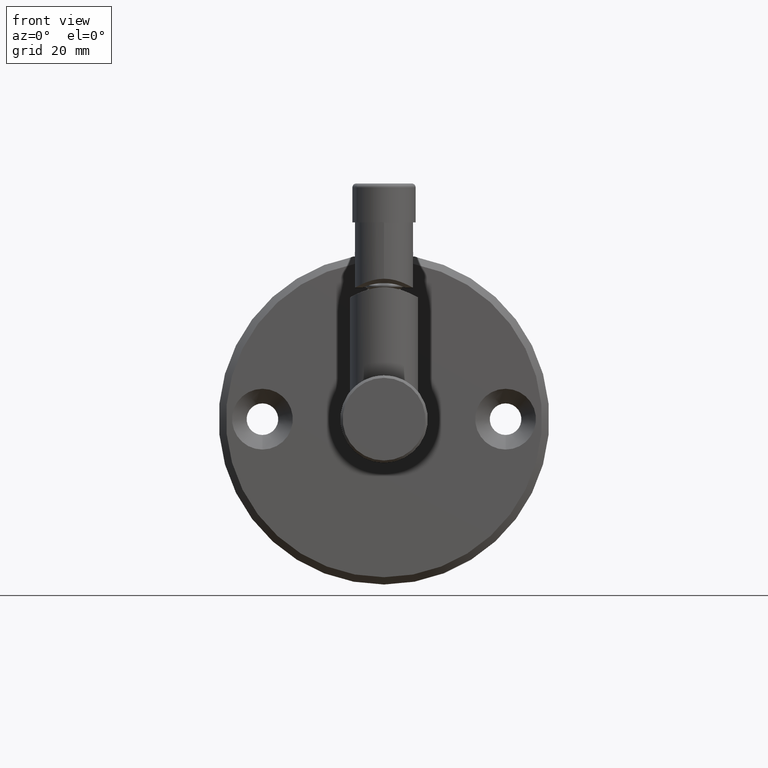
[diagram: clean part render]
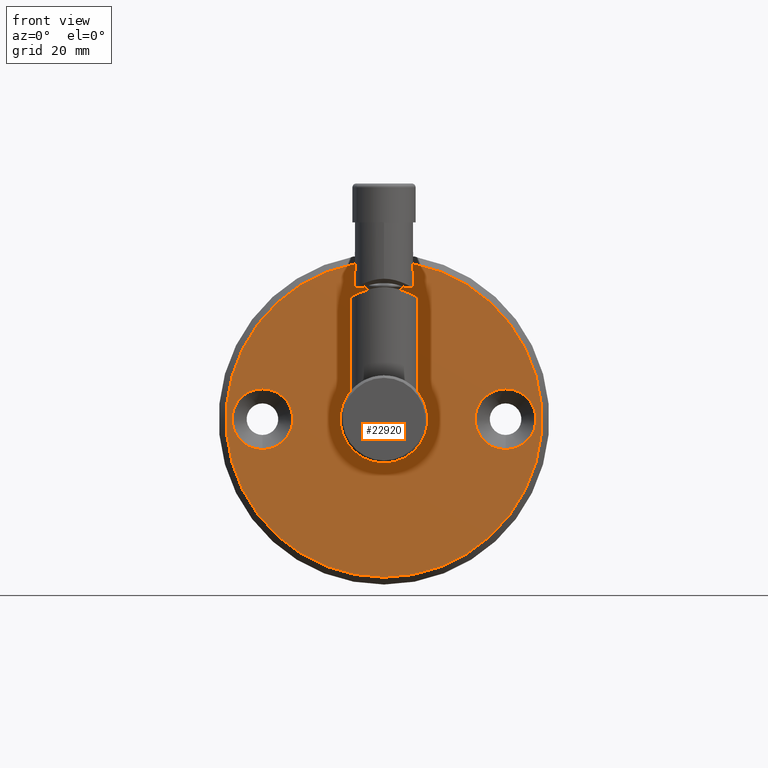
[diagram: same view with one face highlighted and labeled with its STEP entity id]
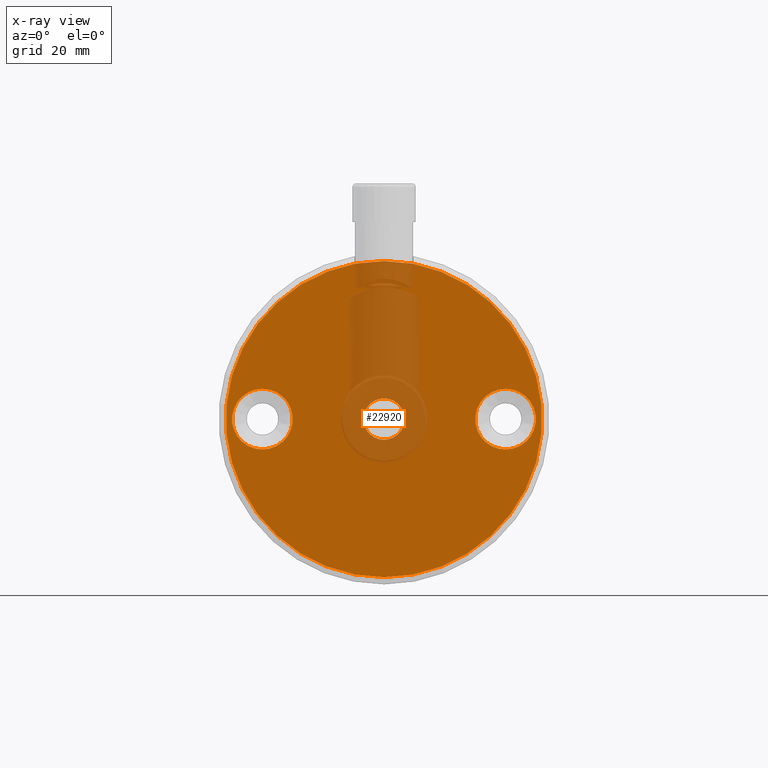
[diagram: x-ray of the same camera — body ghosted, the highlighted face saturated]
A machine part, front view. The second image highlights one B-rep face of the part: STEP entity #22920.
The next image is the same camera in x-ray: the body ghosted, the highlighted face saturated — about 17% of this face is hidden behind the body in this view.
In plain terms, the highlighted planar face has unit normal (0, -1, 0).
Its self-contained STEP definition (entity closure, byte-faithful):
#10 = VERTEX_POINT ( 'NONE', #2925 ) ;
#204 = CARTESIAN_POINT ( 'NONE',  ( 5.640276577966111523E-15, -25.00000000000000000, 3.000000000000000000 ) ) ;
#529 = DIRECTION ( 'NONE',  ( 0.000000000000000000, 0.000000000000000000, 1.000000000000000000 ) ) ;
#743 = VERTEX_POINT ( 'NONE', #15743 ) ;
#777 = EDGE_LOOP ( 'NONE', ( #24924, #25044 ) ) ;
#1631 = FACE_BOUND ( 'NONE', #10952, .T. ) ;
#2032 = CARTESIAN_POINT ( 'NONE',  ( 0.000000000000000000, 0.000000000000000000, 3.000000000000000000 ) ) ;
#2058 = DIRECTION ( 'NONE',  ( 0.000000000000000000, 0.000000000000000000, 1.000000000000000000 ) ) ;
#2356 = CARTESIAN_POINT ( 'NONE',  ( 0.000000000000000000, 0.000000000000000000, 3.000000000000000000 ) ) ;
#2438 = CIRCLE ( 'NONE', #18152, 6.250000000000000000 ) ;
#2705 = DIRECTION ( 'NONE',  ( 0.000000000000000000, 0.000000000000000000, 1.000000000000000000 ) ) ;
#2779 = EDGE_CURVE ( 'NONE', #16619, #11530, #21393, .T. ) ;
#2899 = AXIS2_PLACEMENT_3D ( 'NONE', #2356, #529, #12594 ) ;
#2925 = CARTESIAN_POINT ( 'NONE',  ( -6.249999999999994671, 25.00000000000000000, 3.000000000000000000 ) ) ;
#3342 = DIRECTION ( 'NONE',  ( 1.000000000000000000, 0.000000000000000000, 0.000000000000000000 ) ) ;
#3567 = AXIS2_PLACEMENT_3D ( 'NONE', #18178, #2058, #11953 ) ;
#3744 = CIRCLE ( 'NONE', #2899, 4.249999999999999112 ) ;
#4011 = ORIENTED_EDGE ( 'NONE', *, *, #20081, .F. ) ;
#4400 = PLANE ( 'NONE',  #10077 ) ;
#4660 = CARTESIAN_POINT ( 'NONE',  ( 5.640276577966111523E-15, 25.00000000000000000, 3.000000000000000000 ) ) ;
#4736 = EDGE_CURVE ( 'NONE', #7944, #6088, #3744, .T. ) ;
#6088 = VERTEX_POINT ( 'NONE', #19471 ) ;
#7232 = CIRCLE ( 'NONE', #20903, 4.249999999999999112 ) ;
#7868 = VERTEX_POINT ( 'NONE', #12190 ) ;
#7944 = VERTEX_POINT ( 'NONE', #16097 ) ;
#7999 = DIRECTION ( 'NONE',  ( 0.000000000000000000, 0.000000000000000000, 1.000000000000000000 ) ) ;
#8178 = ORIENTED_EDGE ( 'NONE', *, *, #17486, .F. ) ;
#8527 = DIRECTION ( 'NONE',  ( 1.000000000000000000, 0.000000000000000000, 0.000000000000000000 ) ) ;
#8763 = DIRECTION ( 'NONE',  ( 0.000000000000000000, 0.000000000000000000, 1.000000000000000000 ) ) ;
#9604 = AXIS2_PLACEMENT_3D ( 'NONE', #204, #12112, #19733 ) ;
#9995 = DIRECTION ( 'NONE',  ( 1.000000000000000000, 0.000000000000000000, 0.000000000000000000 ) ) ;
#10077 = AXIS2_PLACEMENT_3D ( 'NONE', #2032, #10144, #23944 ) ;
#10144 = DIRECTION ( 'NONE',  ( 0.000000000000000000, 0.000000000000000000, 1.000000000000000000 ) ) ;
#10952 = EDGE_LOOP ( 'NONE', ( #12286, #16241 ) ) ;
#11437 = CARTESIAN_POINT ( 'NONE',  ( 0.000000000000000000, 0.000000000000000000, 3.000000000000000000 ) ) ;
#11530 = VERTEX_POINT ( 'NONE', #24004 ) ;
#11953 = DIRECTION ( 'NONE',  ( 1.000000000000000000, 0.000000000000000000, 0.000000000000000000 ) ) ;
#12112 = DIRECTION ( 'NONE',  ( 0.000000000000000000, 0.000000000000000000, 1.000000000000000000 ) ) ;
#12190 = CARTESIAN_POINT ( 'NONE',  ( 32.50000000000000000, 4.071950607164949987E-15, 3.000000000000000000 ) ) ;
#12286 = ORIENTED_EDGE ( 'NONE', *, *, #22509, .F. ) ;
#12315 = CIRCLE ( 'NONE', #16980, 32.50000000000000000 ) ;
#12377 = VERTEX_POINT ( 'NONE', #22942 ) ;
#12594 = DIRECTION ( 'NONE',  ( 1.000000000000000000, 0.000000000000000000, 0.000000000000000000 ) ) ;
#13433 = EDGE_LOOP ( 'NONE', ( #13666, #8178 ) ) ;
#13666 = ORIENTED_EDGE ( 'NONE', *, *, #4736, .F. ) ;
#14122 = ORIENTED_EDGE ( 'NONE', *, *, #2779, .F. ) ;
#14534 = CIRCLE ( 'NONE', #25056, 6.250000000000000000 ) ;
#15225 = FACE_BOUND ( 'NONE', #13433, .T. ) ;
#15337 = DIRECTION ( 'NONE',  ( 0.000000000000000000, 0.000000000000000000, 1.000000000000000000 ) ) ;
#15743 = CARTESIAN_POINT ( 'NONE',  ( -32.50000000000000000, 0.000000000000000000, 3.000000000000000000 ) ) ;
#16097 = CARTESIAN_POINT ( 'NONE',  ( -4.249999999999999112, 0.000000000000000000, 3.000000000000000000 ) ) ;
#16212 = DIRECTION ( 'NONE',  ( 1.000000000000000000, 0.000000000000000000, 0.000000000000000000 ) ) ;
#16241 = ORIENTED_EDGE ( 'NONE', *, *, #21295, .F. ) ;
#16550 = CARTESIAN_POINT ( 'NONE',  ( 5.640276577966111523E-15, -25.00000000000000000, 3.000000000000000000 ) ) ;
#16619 = VERTEX_POINT ( 'NONE', #20696 ) ;
#16696 = CARTESIAN_POINT ( 'NONE',  ( 0.000000000000000000, 0.000000000000000000, 3.000000000000000000 ) ) ;
#16980 = AXIS2_PLACEMENT_3D ( 'NONE', #16696, #8763, #20904 ) ;
#17486 = EDGE_CURVE ( 'NONE', #6088, #7944, #7232, .T. ) ;
#17834 = CARTESIAN_POINT ( 'NONE',  ( 5.640276577966111523E-15, 25.00000000000000000, 3.000000000000000000 ) ) ;
#18152 = AXIS2_PLACEMENT_3D ( 'NONE', #4660, #2705, #16212 ) ;
#18178 = CARTESIAN_POINT ( 'NONE',  ( 0.000000000000000000, 0.000000000000000000, 3.000000000000000000 ) ) ;
#18317 = FACE_OUTER_BOUND ( 'NONE', #777, .T. ) ;
#18962 = AXIS2_PLACEMENT_3D ( 'NONE', #17834, #19838, #9995 ) ;
#19108 = EDGE_CURVE ( 'NONE', #7868, #743, #24723, .T. ) ;
#19471 = CARTESIAN_POINT ( 'NONE',  ( 4.249999999999999112, 5.204748896376249713E-16, 3.000000000000000000 ) ) ;
#19733 = DIRECTION ( 'NONE',  ( 1.000000000000000000, 0.000000000000000000, 0.000000000000000000 ) ) ;
#19780 = EDGE_LOOP ( 'NONE', ( #4011, #14122 ) ) ;
#19838 = DIRECTION ( 'NONE',  ( 0.000000000000000000, 0.000000000000000000, 1.000000000000000000 ) ) ;
#20081 = EDGE_CURVE ( 'NONE', #11530, #16619, #14534, .T. ) ;
#20696 = CARTESIAN_POINT ( 'NONE',  ( -6.249999999999994671, -25.00000000000000000, 3.000000000000000000 ) ) ;
#20903 = AXIS2_PLACEMENT_3D ( 'NONE', #11437, #15337, #3342 ) ;
#20904 = DIRECTION ( 'NONE',  ( 1.000000000000000000, 0.000000000000000000, 0.000000000000000000 ) ) ;
#21295 = EDGE_CURVE ( 'NONE', #10, #12377, #2438, .T. ) ;
#21393 = CIRCLE ( 'NONE', #9604, 6.250000000000000000 ) ;
#21396 = FACE_BOUND ( 'NONE', #19780, .T. ) ;
#21426 = EDGE_CURVE ( 'NONE', #743, #7868, #12315, .T. ) ;
#21734 = CIRCLE ( 'NONE', #18962, 6.250000000000000000 ) ;
#22509 = EDGE_CURVE ( 'NONE', #12377, #10, #21734, .T. ) ;
#22920 = ADVANCED_FACE ( 'NONE', ( #15225, #18317, #1631, #21396 ), #4400, .T. ) ;
#22942 = CARTESIAN_POINT ( 'NONE',  ( 6.250000000000006217, 25.00000000000000000, 3.000000000000000000 ) ) ;
#23944 = DIRECTION ( 'NONE',  ( 1.000000000000000000, 0.000000000000000000, 0.000000000000000000 ) ) ;
#24004 = CARTESIAN_POINT ( 'NONE',  ( 6.250000000000006217, -25.00000000000000000, 3.000000000000000000 ) ) ;
#24723 = CIRCLE ( 'NONE', #3567, 32.50000000000000000 ) ;
#24924 = ORIENTED_EDGE ( 'NONE', *, *, #21426, .T. ) ;
#25044 = ORIENTED_EDGE ( 'NONE', *, *, #19108, .T. ) ;
#25056 = AXIS2_PLACEMENT_3D ( 'NONE', #16550, #7999, #8527 ) ;